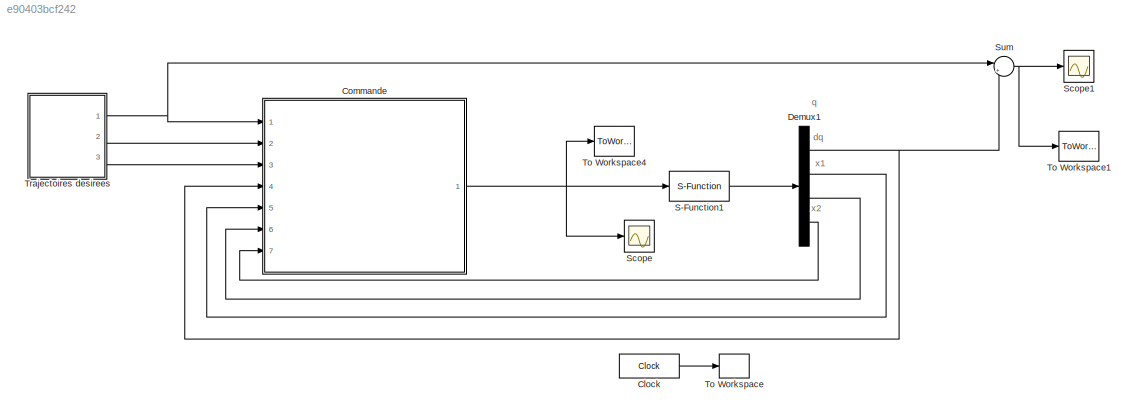
MODEL slx_e90403bcf242
KIND model
CONFIG AbsTol = auto
CONFIG FixedStep = auto
CONFIG MaxStep = auto
CONFIG MinStep = auto
CONFIG RelTol = 1e-3
CONFIG SampleTimeConstraint = Unconstrained
CONFIG Solver = ode45
CONFIG SolverMode = SingleTasking
CONFIG SolverName = ode45
CONFIG StartTime = 0.0
CONFIG StopTime = 10
BLOCK [Clock] Clock
  Decimation = 1
  DisplayTime = on
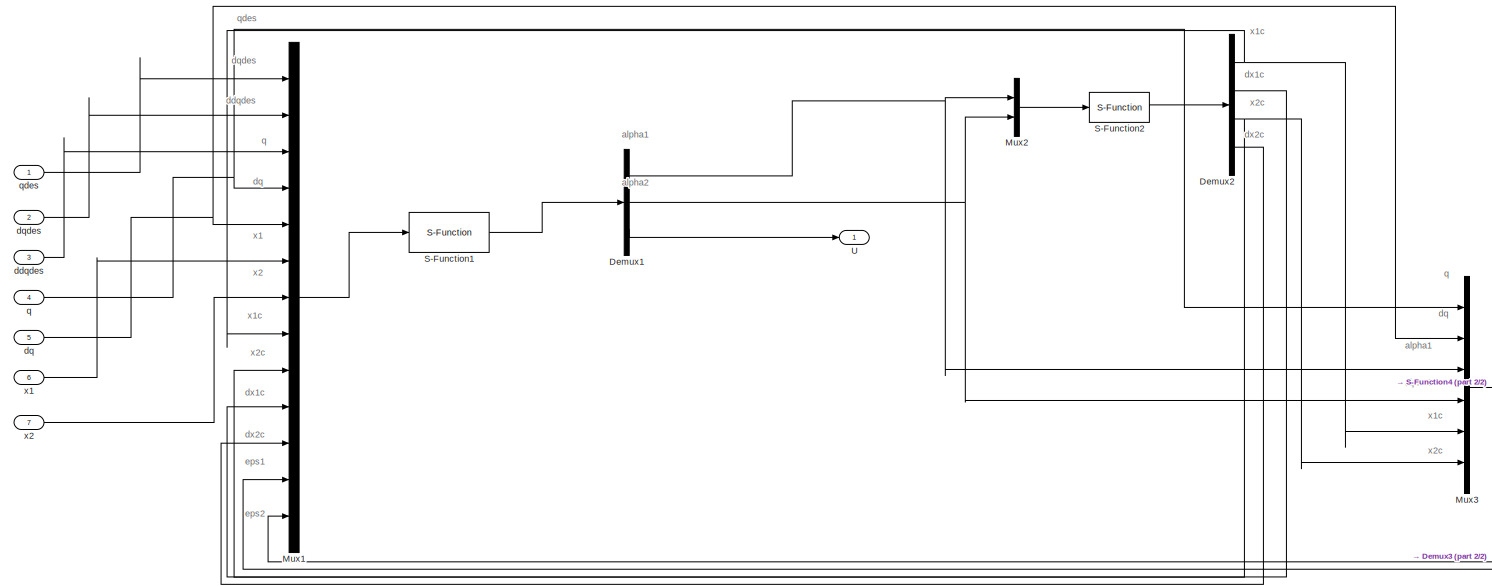
[diagram: Commande - part 1/2, most of the canvas]
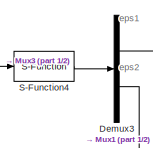
[diagram: Commande - part 2/2, bottom right region]
BLOCK [SubSystem] Commande
  Ports = [7, 1]
  RequestExecContextInheritance = off
BLOCK [Demux] Commande/Demux1
  DisplayOption = bar
  Outputs = 3
  Ports = [1, 3]
BLOCK [Demux] Commande/Demux2
  DisplayOption = bar
  Ports = [1, 4]
BLOCK [Demux] Commande/Demux3
  DisplayOption = bar
  Outputs = 2
  Ports = [1, 2]
BLOCK [Mux] Commande/Mux1
  DisplayOption = bar
  Inputs = 13
  Ports = [13, 1]
BLOCK [Mux] Commande/Mux2
  DisplayOption = bar
  Inputs = 2
  Ports = [2, 1]
BLOCK [Mux] Commande/Mux3
  DisplayOption = bar
  Inputs = 6
  Ports = [6, 1]
BLOCK [S-Function] Commande/S-Function1
  EnableBusSupport = off
  FunctionName = Commd_a
  Ports = [1, 1]
  SFunctionDeploymentMode = off
BLOCK [S-Function] Commande/S-Function2
  EnableBusSupport = off
  FunctionName = CmdF
  Ports = [1, 1]
  SFunctionDeploymentMode = off
BLOCK [S-Function] Commande/S-Function4
  EnableBusSupport = off
  FunctionName = CompError
  Ports = [1, 1]
  SFunctionDeploymentMode = off
BLOCK [Outport] Commande/U
  IconDisplay = Port number
BLOCK [Inport] Commande/ddqdes
  IconDisplay = Port number
  Port = 3
BLOCK [Inport] Commande/dq
  IconDisplay = Port number
  Port = 5
BLOCK [Inport] Commande/dqdes
  IconDisplay = Port number
  Port = 2
BLOCK [Inport] Commande/q
  IconDisplay = Port number
  Port = 4
BLOCK [Inport] Commande/qdes
  IconDisplay = Port number
BLOCK [Inport] Commande/x1
  IconDisplay = Port number
  Port = 6
BLOCK [Inport] Commande/x2
  IconDisplay = Port number
  Port = 7
BLOCK [Demux] Demux1
  DisplayOption = bar
  Ports = [1, 4]
BLOCK [S-Function] S-Function1
  EnableBusSupport = off
  FunctionName = Modele_a
  Ports = [1, 1]
  SFunctionDeploymentMode = off
BLOCK [Scope] Scope
  DataFormat = StructureWithTime
  Decimation = 1
  Floating = off
  Grid = on
  LimitDataPoints = off
  MaxDataPoints = 5000
  NumInputPorts = 1
  Ports = [1]
  SampleInput = off
  SampleTime = -1
  SaveName = ScopeData
  SaveToWorkspace = off
  ShowLegends = off
  TickLabels = OneTimeTick
  TimeRange = auto
  YMax = 8575.16183
  YMin = -3881.13142
  ZoomMode = on
BLOCK [Scope] Scope1
  DataFormat = StructureWithTime
  Decimation = 1
  Floating = off
  Grid = on
  LimitDataPoints = off
  MaxDataPoints = 5000
  NumInputPorts = 1
  Ports = [1]
  SampleInput = off
  SampleTime = -1
  SaveName = ScopeData1
  SaveToWorkspace = off
  ShowLegends = off
  TickLabels = OneTimeTick
  TimeRange = auto
  YMax = 0.00127
  YMin = -0.00044
  ZoomMode = on
BLOCK [Sum] Sum
  IconShape = round
  InputSameDT = off
  Inputs = |+-
  OutDataTypeStr = Inherit: Inherit via internal rule
  Ports = [2, 1]
  SaturateOnIntegerOverflow = off
BLOCK [ToWorkspace] To Workspace
  MaxDataPoints = inf
  Ports = [1]
  SampleTime = -1
  VariableName = t
BLOCK [ToWorkspace] To Workspace1
  MaxDataPoints = inf
  Ports = [1]
  SampleTime = -1
  VariableName = error_q
BLOCK [ToWorkspace] To Workspace4
  MaxDataPoints = inf
  Ports = [1]
  SampleTime = -1
  VariableName = U
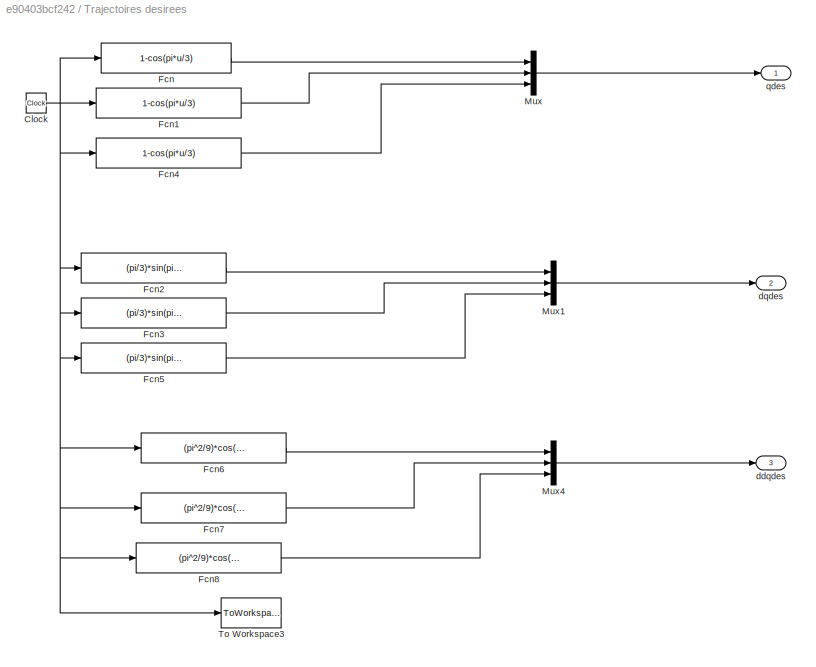
BLOCK [SubSystem] Trajectoires desirees
  Ports = [0, 3]
  RequestExecContextInheritance = off
BLOCK [Clock] Trajectoires desirees/Clock
BLOCK [Fcn] Trajectoires desirees/Fcn
  Expr = 1-cos(pi*u/3)
BLOCK [Fcn] Trajectoires desirees/Fcn1
  Expr = 1-cos(pi*u/3)
BLOCK [Fcn] Trajectoires desirees/Fcn2
  Expr = (pi/3)*sin(pi*u/3)
BLOCK [Fcn] Trajectoires desirees/Fcn3
  Expr = (pi/3)*sin(pi*u/3)
BLOCK [Fcn] Trajectoires desirees/Fcn4
  Expr = 1-cos(pi*u/3)
BLOCK [Fcn] Trajectoires desirees/Fcn5
  Expr = (pi/3)*sin(pi*u/3)
BLOCK [Fcn] Trajectoires desirees/Fcn6
  Expr = (pi^2/9)*cos(pi*u/3)
BLOCK [Fcn] Trajectoires desirees/Fcn7
  Expr = (pi^2/9)*cos(pi*u/3)
BLOCK [Fcn] Trajectoires desirees/Fcn8
  Expr = (pi^2/9)*cos(pi*u/3)
BLOCK [Mux] Trajectoires desirees/Mux
  DisplayOption = bar
  Inputs = 3
  Ports = [3, 1]
BLOCK [Mux] Trajectoires desirees/Mux1
  DisplayOption = bar
  Inputs = 3
  Ports = [3, 1]
BLOCK [Mux] Trajectoires desirees/Mux4
  DisplayOption = bar
  Inputs = 3
  Ports = [3, 1]
BLOCK [ToWorkspace] Trajectoires desirees/To Workspace3
  FixptAsFi = on
  MaxDataPoints = inf
  Ports = [1]
  SampleTime = -1
  Save2DSignal = 3-D array (concatenate along third dimension)
  VariableName = s
BLOCK [Outport] Trajectoires desirees/ddqdes
  IconDisplay = Port number
  Port = 3
BLOCK [Outport] Trajectoires desirees/dqdes
  IconDisplay = Port number
  Port = 2
BLOCK [Outport] Trajectoires desirees/qdes
  IconDisplay = Port number
ANNOTATION (root): dq
ANNOTATION (root): q
ANNOTATION (root): x1
ANNOTATION (root): x2
ANNOTATION Commande: alpha1
ANNOTATION Commande: alpha2
ANNOTATION Commande: ddqdes
ANNOTATION Commande: dq
ANNOTATION Commande: dqdes
ANNOTATION Commande: dx1c
ANNOTATION Commande: dx2c
ANNOTATION Commande: eps1
ANNOTATION Commande: eps2
ANNOTATION Commande: q
ANNOTATION Commande: qdes
ANNOTATION Commande: x1
ANNOTATION Commande: x1c
ANNOTATION Commande: x2
ANNOTATION Commande: x2c
LINE Clock:1 -> To Workspace:1
NET Commande/Demux1:1 -> Commande/Mux2:1, Commande/Mux3:3
NET Commande/Demux1:2 -> Commande/Mux2:2, Commande/Mux3:4
LINE Commande/Demux1:3 -> Commande/U:1
NET Commande/Demux2:1 -> Commande/Mux1:8, Commande/Mux3:5
LINE Commande/Demux2:2 -> Commande/Mux1:10
NET Commande/Demux2:3 -> Commande/Mux1:9, Commande/Mux3:6
LINE Commande/Demux2:4 -> Commande/Mux1:11
LINE Commande/Demux3:1 -> Commande/Mux1:12
LINE Commande/Demux3:2 -> Commande/Mux1:13
LINE Commande/Mux1:1 -> Commande/S-Function1:1
LINE Commande/Mux2:1 -> Commande/S-Function2:1
LINE Commande/Mux3:1 -> Commande/S-Function4:1
LINE Commande/S-Function1:1 -> Commande/Demux1:1
LINE Commande/S-Function2:1 -> Commande/Demux2:1
LINE Commande/S-Function4:1 -> Commande/Demux3:1
LINE Commande/ddqdes:1 -> Commande/Mux1:3
NET Commande/dq:1 -> Commande/Mux1:5, Commande/Mux3:2
LINE Commande/dqdes:1 -> Commande/Mux1:2
NET Commande/q:1 -> Commande/Mux1:4, Commande/Mux3:1
LINE Commande/qdes:1 -> Commande/Mux1:1
LINE Commande/x1:1 -> Commande/Mux1:6
LINE Commande/x2:1 -> Commande/Mux1:7
NET Commande:1 -> S-Function1:1, Scope:1, To Workspace4:1
NET Demux1:1 -> Commande:4, Sum:2
LINE Demux1:2 -> Commande:5
LINE Demux1:3 -> Commande:6
LINE Demux1:4 -> Commande:7
LINE S-Function1:1 -> Demux1:1
NET Sum:1 -> Scope1:1, To Workspace1:1
NET Trajectoires desirees/Clock:1 -> Trajectoires desirees/Fcn1:1, Trajectoires desirees/Fcn2:1, Trajectoires desirees/Fcn3:1, Trajectoires desirees/Fcn4:1, Trajectoires desirees/Fcn5:1, Trajectoires desirees/Fcn6:1, Trajectoires desirees/Fcn7:1, Trajectoires desirees/Fcn8:1, Trajectoires desirees/Fcn:1, Trajectoires desirees/To Workspace3:1
LINE Trajectoires desirees/Fcn1:1 -> Trajectoires desirees/Mux:2
LINE Trajectoires desirees/Fcn2:1 -> Trajectoires desirees/Mux1:1
LINE Trajectoires desirees/Fcn3:1 -> Trajectoires desirees/Mux1:2
LINE Trajectoires desirees/Fcn4:1 -> Trajectoires desirees/Mux:3
LINE Trajectoires desirees/Fcn5:1 -> Trajectoires desirees/Mux1:3
LINE Trajectoires desirees/Fcn6:1 -> Trajectoires desirees/Mux4:1
LINE Trajectoires desirees/Fcn7:1 -> Trajectoires desirees/Mux4:2
LINE Trajectoires desirees/Fcn8:1 -> Trajectoires desirees/Mux4:3
LINE Trajectoires desirees/Fcn:1 -> Trajectoires desirees/Mux:1
LINE Trajectoires desirees/Mux1:1 -> Trajectoires desirees/dqdes:1
LINE Trajectoires desirees/Mux4:1 -> Trajectoires desirees/ddqdes:1
LINE Trajectoires desirees/Mux:1 -> Trajectoires desirees/qdes:1
NET Trajectoires desirees:1 -> Commande:1, Sum:1
LINE Trajectoires desirees:2 -> Commande:2
LINE Trajectoires desirees:3 -> Commande:3
note: NET lines group one-source signal fan-out (src -> all destinations, sorted); 1:1 wires keep LINE
